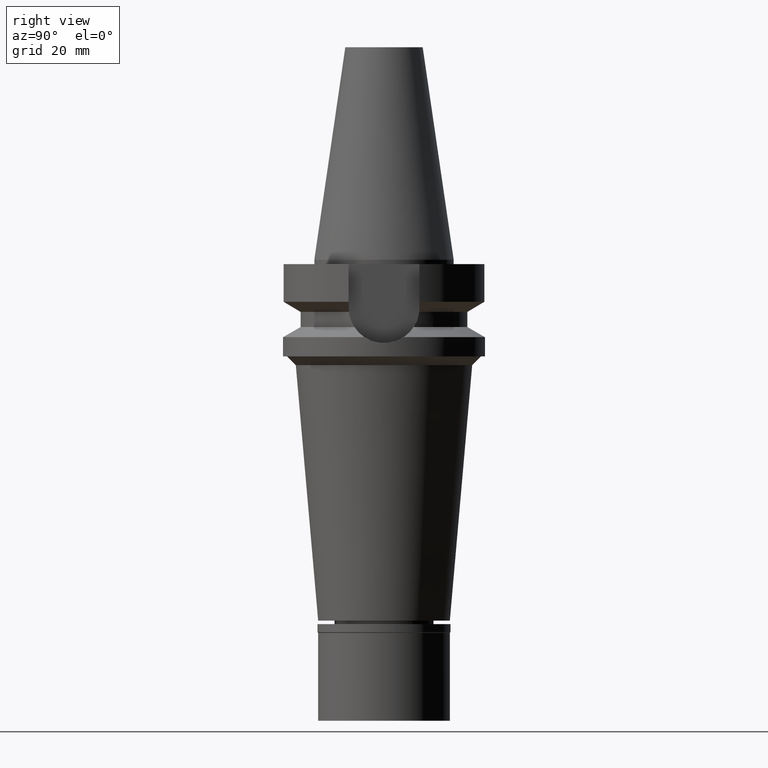
[diagram: clean part render]
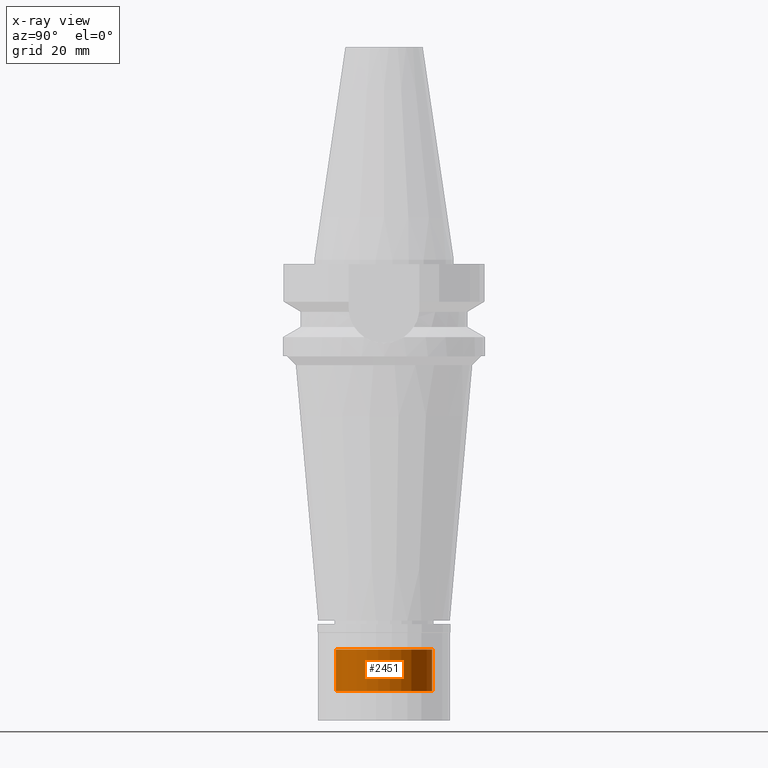
[diagram: x-ray — body ghosted, one internal face saturated and labeled with its STEP entity id]
A machine part, right view, then the same camera in x-ray: the body is ghosted and one INTERNAL B-rep face — a face not visible from any outside direction — is saturated and labeled: STEP entity #2451.
In plain terms, the highlighted cylindrical surface (partial cylindrical patch) has radius 11 mm, axis along (0, 0, -1).
Its self-contained STEP definition (entity closure, byte-faithful):
#2 = AXIS2_PLACEMENT_3D ( 'NONE', #833, #614, #2004 ) ;
#161 = LINE ( 'NONE', #1091, #1037 ) ;
#387 = VERTEX_POINT ( 'NONE', #2221 ) ;
#460 = AXIS2_PLACEMENT_3D ( 'NONE', #1077, #847, #1128 ) ;
#475 = ORIENTED_EDGE ( 'NONE', *, *, #2437, .T. ) ;
#505 = CIRCLE ( 'NONE', #2, 11.00000000000000000 ) ;
#614 = DIRECTION ( 'NONE',  ( 0.0000000000000000000, 0.0000000000000000000, 1.000000000000000000 ) ) ;
#643 = LINE ( 'NONE', #1556, #897 ) ;
#735 = VERTEX_POINT ( 'NONE', #1833 ) ;
#752 = ORIENTED_EDGE ( 'NONE', *, *, #1520, .T. ) ;
#833 = CARTESIAN_POINT ( 'NONE',  ( 0.0000000000000000000, 0.0000000000000000000, -98.29999999999999716 ) ) ;
#844 = DIRECTION ( 'NONE',  ( 0.0000000000000000000, 0.0000000000000000000, -1.000000000000000000 ) ) ;
#847 = DIRECTION ( 'NONE',  ( 0.0000000000000000000, 0.0000000000000000000, -1.000000000000000000 ) ) ;
#897 = VECTOR ( 'NONE', #2535, 1000.000000000000000 ) ;
#1037 = VECTOR ( 'NONE', #1780, 1000.000000000000000 ) ;
#1077 = CARTESIAN_POINT ( 'NONE',  ( 0.0000000000000000000, 0.0000000000000000000, -88.79999999999999716 ) ) ;
#1091 = CARTESIAN_POINT ( 'NONE',  ( 0.0000000000000000000, -11.00000000000000000, -88.79999999999999716 ) ) ;
#1128 = DIRECTION ( 'NONE',  ( 0.0000000000000000000, 1.000000000000000000, 0.0000000000000000000 ) ) ;
#1208 = CIRCLE ( 'NONE', #460, 11.00000000000000000 ) ;
#1271 = ORIENTED_EDGE ( 'NONE', *, *, #2370, .T. ) ;
#1520 = EDGE_CURVE ( 'NONE', #735, #1608, #1208, .T. ) ;
#1556 = CARTESIAN_POINT ( 'NONE',  ( 0.0000000000000000000, 11.00000000000000000, -88.79999999999999716 ) ) ;
#1599 = CARTESIAN_POINT ( 'NONE',  ( 0.0000000000000000000, 0.0000000000000000000, 0.0000000000000000000 ) ) ;
#1608 = VERTEX_POINT ( 'NONE', #2252 ) ;
#1780 = DIRECTION ( 'NONE',  ( 0.0000000000000000000, 0.0000000000000000000, -1.000000000000000000 ) ) ;
#1833 = CARTESIAN_POINT ( 'NONE',  ( 0.0000000000000000000, 11.00000000000000000, -88.79999999999999716 ) ) ;
#2004 = DIRECTION ( 'NONE',  ( 0.0000000000000000000, -1.000000000000000000, 0.0000000000000000000 ) ) ;
#2221 = CARTESIAN_POINT ( 'NONE',  ( 0.0000000000000000000, 11.00000000000000000, -98.29999999999999716 ) ) ;
#2252 = CARTESIAN_POINT ( 'NONE',  ( 0.0000000000000000000, -11.00000000000000000, -88.79999999999999716 ) ) ;
#2266 = CYLINDRICAL_SURFACE ( 'NONE', #2564, 11.00000000000000000 ) ;
#2268 = CARTESIAN_POINT ( 'NONE',  ( 0.0000000000000000000, -11.00000000000000000, -98.29999999999999716 ) ) ;
#2370 = EDGE_CURVE ( 'NONE', #1608, #2726, #161, .T. ) ;
#2437 = EDGE_CURVE ( 'NONE', #2726, #387, #505, .T. ) ;
#2451 = ADVANCED_FACE ( 'NONE', ( #2517 ), #2266, .T. ) ;
#2463 = EDGE_CURVE ( 'NONE', #735, #387, #643, .T. ) ;
#2517 = FACE_OUTER_BOUND ( 'NONE', #2583, .T. ) ;
#2535 = DIRECTION ( 'NONE',  ( 0.0000000000000000000, 0.0000000000000000000, -1.000000000000000000 ) ) ;
#2564 = AXIS2_PLACEMENT_3D ( 'NONE', #1599, #844, #2745 ) ;
#2583 = EDGE_LOOP ( 'NONE', ( #752, #1271, #475, #2997 ) ) ;
#2726 = VERTEX_POINT ( 'NONE', #2268 ) ;
#2745 = DIRECTION ( 'NONE',  ( 0.0000000000000000000, -1.000000000000000000, 0.0000000000000000000 ) ) ;
#2997 = ORIENTED_EDGE ( 'NONE', *, *, #2463, .F. ) ;